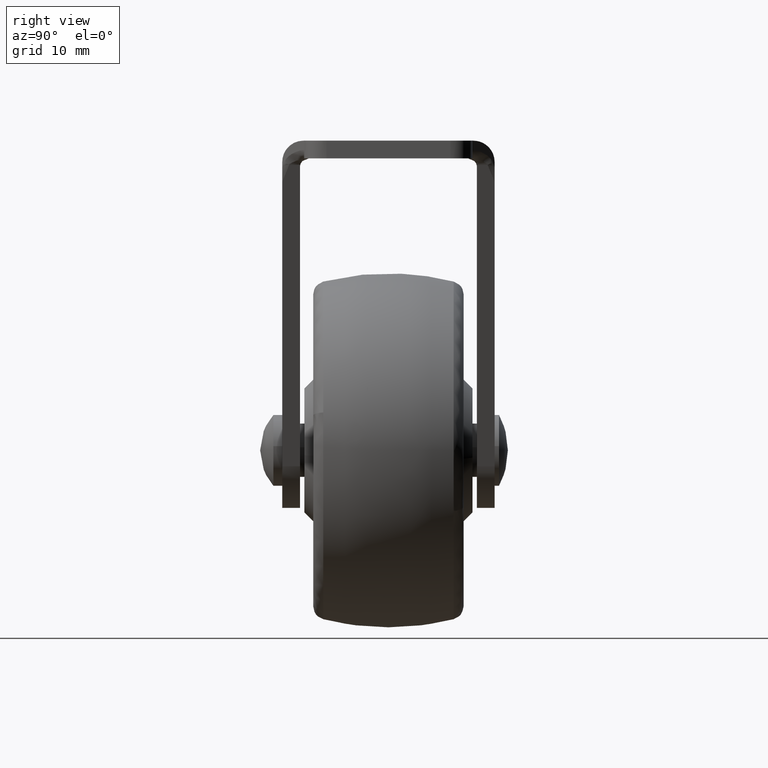
[diagram: clean part render]
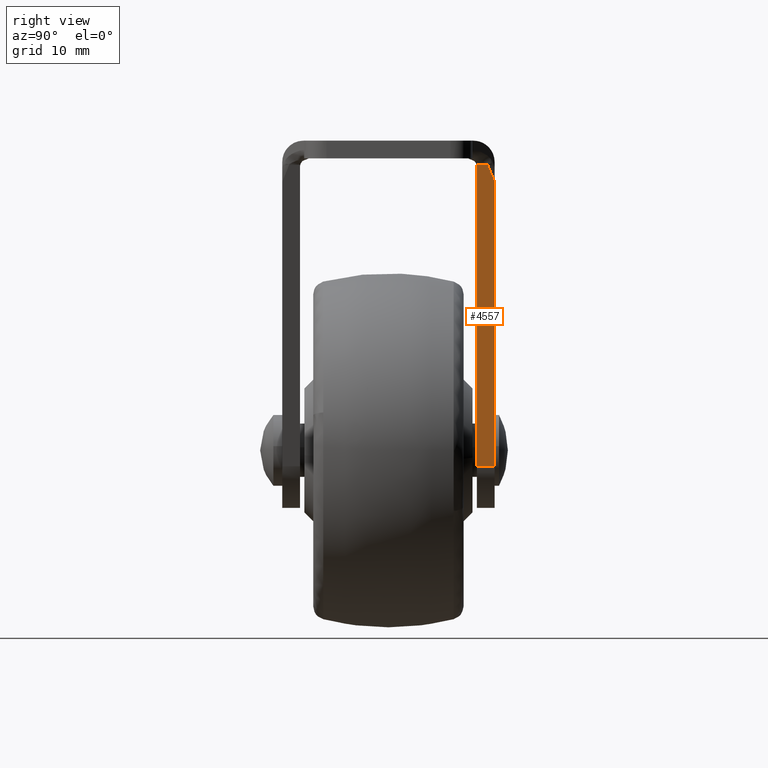
[diagram: same view with one face highlighted and labeled with its STEP entity id]
A machine part, right view. The second image highlights one B-rep face of the part: STEP entity #4557.
In plain terms, the highlighted face is a freeform B-spline surface patch.
Its self-contained STEP definition (entity closure, byte-faithful):
#3673=CARTESIAN_POINT('',(16.041948829461099,11.212101112700781,-2.723712979397050));
#3674=VERTEX_POINT('',#3673);
#3688=CARTESIAN_POINT('',(15.490419608351649,12.0,-4.642228871819460));
#3689=VERTEX_POINT('',#3688);
#3690=CARTESIAN_POINT('',(15.490419608351649,12.0,-4.642228871819460));
#3691=CARTESIAN_POINT('',(16.041948829461099,11.212101112700781,-2.723712979397050));
#3692=QUASI_UNIFORM_CURVE('',1,(#3690,#3691),.UNSPECIFIED.,.F.,.U.);
#3693=EDGE_CURVE('',#3689,#3674,#3692,.T.);
#4214=CARTESIAN_POINT('',(16.041948829461099,9.961075169925049,-2.723712979397050));
#4215=VERTEX_POINT('',#4214);
#4266=CARTESIAN_POINT('',(15.962522661620801,10.0,-2.999999999999780));
#4267=VERTEX_POINT('',#4266);
#4273=CARTESIAN_POINT('',(16.041948829461120,9.961075169925053,-2.723712979397058));
#4274=CARTESIAN_POINT('',(16.003023999386169,9.999999999999998,-2.859114517974489));
#4275=CARTESIAN_POINT('',(15.962522661620801,10.0,-2.999999999999780));
#4283=(BOUNDED_CURVE()B_SPLINE_CURVE(2,(#4273,#4274,#4275),.UNSPECIFIED.,.F.,.U.)CURVE()GEOMETRIC_REPRESENTATION_ITEM()QUASI_UNIFORM_CURVE()RATIONAL_B_SPLINE_CURVE((1.0,0.990220977844285,1.0))REPRESENTATION_ITEM(''));
#4284=EDGE_CURVE('',#4215,#4267,#4283,.T.);
#4327=CARTESIAN_POINT('',(16.041948829461099,11.212101112700781,-2.723712979397050));
#4328=CARTESIAN_POINT('',(16.041948829461099,9.961075169925049,-2.723712979397050));
#4329=QUASI_UNIFORM_CURVE('',1,(#4327,#4328),.UNSPECIFIED.,.F.,.U.);
#4330=EDGE_CURVE('',#3674,#4215,#4329,.T.);
#4528=CARTESIAN_POINT('',(16.531207068913702,9.859230514955256,-1.021809123786058));
#4529=CARTESIAN_POINT('',(5.757730198416421,9.859230514955256,-38.497768332466883));
#4530=CARTESIAN_POINT('',(16.531207068913702,12.101844363299261,-1.021809123786058));
#4531=CARTESIAN_POINT('',(5.757730198416421,12.101844363299261,-38.497768332466883));
#4532=B_SPLINE_SURFACE_WITH_KNOTS('',1,1,((#4528,#4530),(#4529,#4531)),.UNSPECIFIED.,.F.,.F.,.U.,(2,2),(2,2),(0.0,38.993785690669327),(0.0,2.242613848344004),.UNSPECIFIED.);
#4533=CARTESIAN_POINT('',(6.246988000000100,12.0,-36.795865999999812));
#4534=VERTEX_POINT('',#4533);
#4535=CARTESIAN_POINT('',(15.490419608351649,12.0,-4.642228871819460));
#4536=CARTESIAN_POINT('',(6.246988000000100,12.0,-36.795865999999812));
#4537=QUASI_UNIFORM_CURVE('',1,(#4535,#4536),.UNSPECIFIED.,.F.,.U.);
#4538=EDGE_CURVE('',#3689,#4534,#4537,.T.);
#4539=ORIENTED_EDGE('',*,*,#4538,.F.);
#4540=ORIENTED_EDGE('',*,*,#3693,.T.);
#4541=ORIENTED_EDGE('',*,*,#4330,.T.);
#4542=ORIENTED_EDGE('',*,*,#4284,.T.);
#4543=CARTESIAN_POINT('',(6.246988000000091,10.0,-36.795865999999812));
#4544=VERTEX_POINT('',#4543);
#4545=CARTESIAN_POINT('',(15.962522661620801,10.0,-2.999999999999780));
#4546=CARTESIAN_POINT('',(6.246988000000091,10.0,-36.795865999999812));
#4547=QUASI_UNIFORM_CURVE('',1,(#4545,#4546),.UNSPECIFIED.,.F.,.U.);
#4548=EDGE_CURVE('',#4267,#4544,#4547,.T.);
#4549=ORIENTED_EDGE('',*,*,#4548,.T.);
#4550=CARTESIAN_POINT('',(6.246988000000091,10.0,-36.795865999999812));
#4551=CARTESIAN_POINT('',(6.246988000000100,12.0,-36.795865999999812));
#4552=QUASI_UNIFORM_CURVE('',1,(#4550,#4551),.UNSPECIFIED.,.F.,.U.);
#4553=EDGE_CURVE('',#4544,#4534,#4552,.T.);
#4554=ORIENTED_EDGE('',*,*,#4553,.T.);
#4555=EDGE_LOOP('',(#4539,#4540,#4541,#4542,#4549,#4554));
#4556=FACE_OUTER_BOUND('',#4555,.T.);
#4557=ADVANCED_FACE('',(#4556),#4532,.T.);